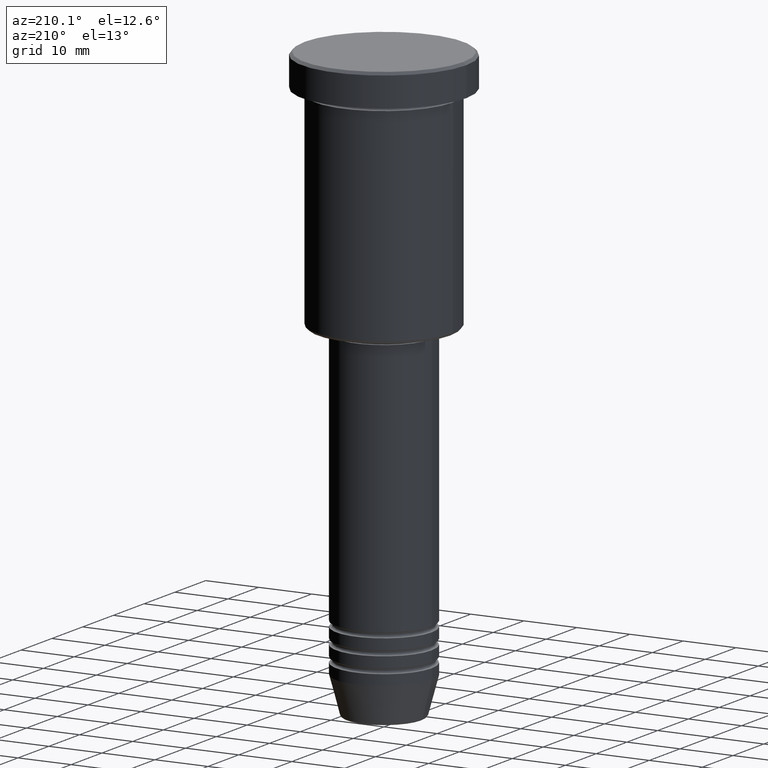
[diagram: clean part render]
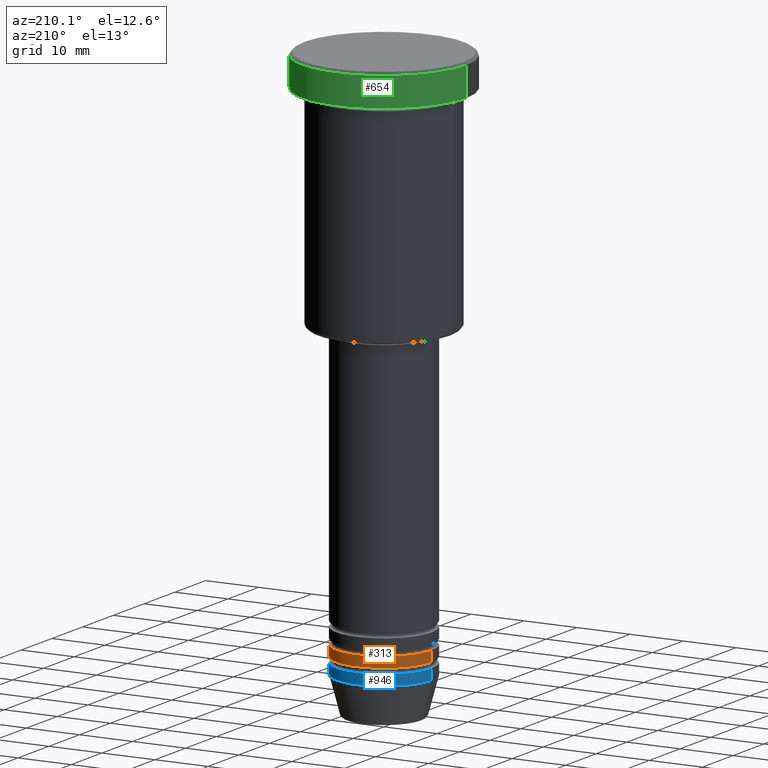
[diagram: same view with three faces highlighted in distinct colors, each labeled with its STEP entity id]
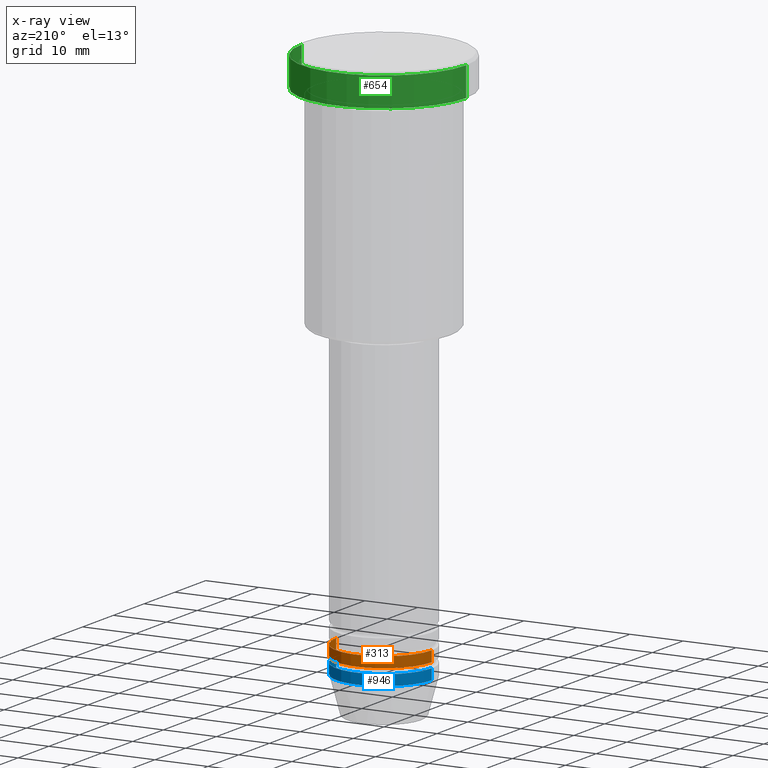
[diagram: x-ray of the same camera — body ghosted, the three highlighted faces saturated]
A machine part, auxiliary view with three faces highlighted in distinct colors.
The next image is the same camera in x-ray (body ghosted, the three faces saturated) — at least one of them is partly hidden behind the body in this view.
Their STEP definitions:

[orange] entity #313 — the highlighted cylindrical surface (partial cylindrical patch) has radius 9 mm, axis along (-0, -0, 1).
#30 = CIRCLE ( 'NONE', #711, 9.000000000000000000 ) ;
#130 = CARTESIAN_POINT ( 'NONE',  ( 9.000000000000000000, 0.000000000000000000, -100.9999999999999716 ) ) ;
#162 = FACE_OUTER_BOUND ( 'NONE', #693, .T. ) ;
#193 = DIRECTION ( 'NONE',  ( 1.000000000000000000, 0.000000000000000000, 0.000000000000000000 ) ) ;
#237 = DIRECTION ( 'NONE',  ( 1.000000000000000000, 0.000000000000000000, 0.000000000000000000 ) ) ;
#242 = VECTOR ( 'NONE', #951, 1000.000000000000000 ) ;
#313 = ADVANCED_FACE ( 'NONE', ( #162 ), #504, .T. ) ;
#327 = LINE ( 'NONE', #1063, #1002 ) ;
#363 = ORIENTED_EDGE ( 'NONE', *, *, #1036, .F. ) ;
#374 = VERTEX_POINT ( 'NONE', #462 ) ;
#421 = AXIS2_PLACEMENT_3D ( 'NONE', #691, #698, #237 ) ;
#434 = DIRECTION ( 'NONE',  ( -0.000000000000000000, -0.000000000000000000, 1.000000000000000000 ) ) ;
#449 = DIRECTION ( 'NONE',  ( -0.000000000000000000, -0.000000000000000000, 1.000000000000000000 ) ) ;
#462 = CARTESIAN_POINT ( 'NONE',  ( 9.000000000000000000, 0.000000000000000000, -98.99999999999998579 ) ) ;
#484 = ORIENTED_EDGE ( 'NONE', *, *, #639, .T. ) ;
#504 = CYLINDRICAL_SURFACE ( 'NONE', #421, 9.000000000000000000 ) ;
#589 = ORIENTED_EDGE ( 'NONE', *, *, #715, .F. ) ;
#600 = LINE ( 'NONE', #1048, #242 ) ;
#639 = EDGE_CURVE ( 'NONE', #674, #679, #600, .T. ) ;
#643 = DIRECTION ( 'NONE',  ( 1.000000000000000000, 0.000000000000000000, 0.000000000000000000 ) ) ;
#661 = VERTEX_POINT ( 'NONE', #130 ) ;
#674 = VERTEX_POINT ( 'NONE', #791 ) ;
#679 = VERTEX_POINT ( 'NONE', #776 ) ;
#691 = CARTESIAN_POINT ( 'NONE',  ( 0.000000000000000000, 0.000000000000000000, 0.000000000000000000 ) ) ;
#693 = EDGE_LOOP ( 'NONE', ( #972, #484, #363, #589 ) ) ;
#698 = DIRECTION ( 'NONE',  ( -0.000000000000000000, -0.000000000000000000, 1.000000000000000000 ) ) ;
#711 = AXIS2_PLACEMENT_3D ( 'NONE', #820, #449, #643 ) ;
#715 = EDGE_CURVE ( 'NONE', #661, #374, #327, .T. ) ;
#776 = CARTESIAN_POINT ( 'NONE',  ( -9.000000000000000000, 1.102182119232617714E-15, -98.99999999999998579 ) ) ;
#791 = CARTESIAN_POINT ( 'NONE',  ( -9.000000000000000000, 1.102182119232617714E-15, -100.9999999999999716 ) ) ;
#808 = EDGE_CURVE ( 'NONE', #661, #674, #30, .T. ) ;
#815 = CIRCLE ( 'NONE', #1076, 9.000000000000000000 ) ;
#820 = CARTESIAN_POINT ( 'NONE',  ( 0.000000000000000000, 0.000000000000000000, -100.9999999999999716 ) ) ;
#923 = DIRECTION ( 'NONE',  ( -0.000000000000000000, -0.000000000000000000, 1.000000000000000000 ) ) ;
#951 = DIRECTION ( 'NONE',  ( -0.000000000000000000, -0.000000000000000000, 1.000000000000000000 ) ) ;
#972 = ORIENTED_EDGE ( 'NONE', *, *, #808, .T. ) ;
#1002 = VECTOR ( 'NONE', #434, 1000.000000000000000 ) ;
#1036 = EDGE_CURVE ( 'NONE', #374, #679, #815, .T. ) ;
#1048 = CARTESIAN_POINT ( 'NONE',  ( -9.000000000000000000, 1.102182119232617714E-15, 0.000000000000000000 ) ) ;
#1063 = CARTESIAN_POINT ( 'NONE',  ( 9.000000000000000000, 0.000000000000000000, 0.000000000000000000 ) ) ;
#1076 = AXIS2_PLACEMENT_3D ( 'NONE', #1109, #923, #193 ) ;
#1109 = CARTESIAN_POINT ( 'NONE',  ( 0.000000000000000000, 0.000000000000000000, -98.99999999999998579 ) ) ;

[blue] entity #946 — the highlighted cylindrical surface (partial cylindrical patch) has radius 9 mm, axis along (-0, -0, 1).
#34 = EDGE_CURVE ( 'NONE', #994, #659, #509, .T. ) ;
#40 = CARTESIAN_POINT ( 'NONE',  ( -9.000000000000000000, 1.102182119232617714E-15, -104.0000000000000142 ) ) ;
#78 = CYLINDRICAL_SURFACE ( 'NONE', #221, 9.000000000000000000 ) ;
#86 = CARTESIAN_POINT ( 'NONE',  ( 9.000000000000000000, 0.000000000000000000, -102.0000000000000142 ) ) ;
#166 = VECTOR ( 'NONE', #212, 1000.000000000000000 ) ;
#170 = DIRECTION ( 'NONE',  ( -0.000000000000000000, -0.000000000000000000, 1.000000000000000000 ) ) ;
#176 = DIRECTION ( 'NONE',  ( 1.000000000000000000, 0.000000000000000000, 0.000000000000000000 ) ) ;
#212 = DIRECTION ( 'NONE',  ( -0.000000000000000000, -0.000000000000000000, 1.000000000000000000 ) ) ;
#221 = AXIS2_PLACEMENT_3D ( 'NONE', #637, #991, #176 ) ;
#273 = ORIENTED_EDGE ( 'NONE', *, *, #34, .T. ) ;
#321 = CIRCLE ( 'NONE', #983, 9.000000000000000000 ) ;
#325 = ORIENTED_EDGE ( 'NONE', *, *, #503, .F. ) ;
#380 = VERTEX_POINT ( 'NONE', #86 ) ;
#402 = VECTOR ( 'NONE', #1053, 1000.000000000000000 ) ;
#424 = EDGE_LOOP ( 'NONE', ( #273, #774, #793, #325 ) ) ;
#457 = CARTESIAN_POINT ( 'NONE',  ( 0.000000000000000000, 0.000000000000000000, -102.0000000000000142 ) ) ;
#459 = EDGE_CURVE ( 'NONE', #380, #695, #321, .T. ) ;
#503 = EDGE_CURVE ( 'NONE', #994, #380, #939, .T. ) ;
#509 = CIRCLE ( 'NONE', #781, 9.000000000000000000 ) ;
#539 = DIRECTION ( 'NONE',  ( 1.000000000000000000, 0.000000000000000000, 0.000000000000000000 ) ) ;
#541 = FACE_OUTER_BOUND ( 'NONE', #424, .T. ) ;
#618 = CARTESIAN_POINT ( 'NONE',  ( -9.000000000000000000, 1.102182119232617714E-15, 0.000000000000000000 ) ) ;
#637 = CARTESIAN_POINT ( 'NONE',  ( 0.000000000000000000, 0.000000000000000000, 0.000000000000000000 ) ) ;
#659 = VERTEX_POINT ( 'NONE', #40 ) ;
#675 = CARTESIAN_POINT ( 'NONE',  ( 9.000000000000000000, 0.000000000000000000, -104.0000000000000142 ) ) ;
#681 = CARTESIAN_POINT ( 'NONE',  ( 0.000000000000000000, 0.000000000000000000, -104.0000000000000142 ) ) ;
#695 = VERTEX_POINT ( 'NONE', #796 ) ;
#728 = EDGE_CURVE ( 'NONE', #659, #695, #889, .T. ) ;
#749 = DIRECTION ( 'NONE',  ( 1.000000000000000000, 0.000000000000000000, 0.000000000000000000 ) ) ;
#774 = ORIENTED_EDGE ( 'NONE', *, *, #728, .T. ) ;
#781 = AXIS2_PLACEMENT_3D ( 'NONE', #681, #1102, #749 ) ;
#793 = ORIENTED_EDGE ( 'NONE', *, *, #459, .F. ) ;
#796 = CARTESIAN_POINT ( 'NONE',  ( -9.000000000000000000, 1.102182119232617714E-15, -102.0000000000000142 ) ) ;
#889 = LINE ( 'NONE', #618, #402 ) ;
#939 = LINE ( 'NONE', #1110, #166 ) ;
#946 = ADVANCED_FACE ( 'NONE', ( #541 ), #78, .T. ) ;
#983 = AXIS2_PLACEMENT_3D ( 'NONE', #457, #170, #539 ) ;
#991 = DIRECTION ( 'NONE',  ( -0.000000000000000000, -0.000000000000000000, 1.000000000000000000 ) ) ;
#994 = VERTEX_POINT ( 'NONE', #675 ) ;
#1053 = DIRECTION ( 'NONE',  ( -0.000000000000000000, -0.000000000000000000, 1.000000000000000000 ) ) ;
#1102 = DIRECTION ( 'NONE',  ( -0.000000000000000000, -0.000000000000000000, 1.000000000000000000 ) ) ;
#1110 = CARTESIAN_POINT ( 'NONE',  ( 9.000000000000000000, 0.000000000000000000, 0.000000000000000000 ) ) ;

[green] entity #654 — the highlighted cylindrical surface (partial cylindrical patch) has radius 15.5 mm, axis along (-0, -0, 1).
#11 = VERTEX_POINT ( 'NONE', #463 ) ;
#47 = EDGE_CURVE ( 'NONE', #229, #505, #646, .T. ) ;
#129 = LINE ( 'NONE', #590, #1059 ) ;
#142 = CARTESIAN_POINT ( 'NONE',  ( 0.000000000000000000, 0.000000000000000000, 0.000000000000000000 ) ) ;
#229 = VERTEX_POINT ( 'NONE', #329 ) ;
#234 = DIRECTION ( 'NONE',  ( 1.000000000000000000, 0.000000000000000000, 0.000000000000000000 ) ) ;
#263 = DIRECTION ( 'NONE',  ( -0.000000000000000000, -0.000000000000000000, 1.000000000000000000 ) ) ;
#284 = DIRECTION ( 'NONE',  ( -0.000000000000000000, -0.000000000000000000, 1.000000000000000000 ) ) ;
#296 = CARTESIAN_POINT ( 'NONE',  ( -15.50000000000000000, 1.898202538678397557E-15, -5.999999999999995559 ) ) ;
#329 = CARTESIAN_POINT ( 'NONE',  ( 15.50000000000000000, 0.000000000000000000, -5.999999999999995559 ) ) ;
#388 = ORIENTED_EDGE ( 'NONE', *, *, #1124, .F. ) ;
#393 = EDGE_CURVE ( 'NONE', #505, #556, #1090, .T. ) ;
#407 = CARTESIAN_POINT ( 'NONE',  ( 0.000000000000000000, 0.000000000000000000, -0.5000000000000125455 ) ) ;
#463 = CARTESIAN_POINT ( 'NONE',  ( 15.50000000000000000, 0.000000000000000000, -0.5000000000000125455 ) ) ;
#488 = EDGE_CURVE ( 'NONE', #556, #11, #765, .T. ) ;
#494 = CARTESIAN_POINT ( 'NONE',  ( 0.000000000000000000, 0.000000000000000000, -5.999999999999995559 ) ) ;
#499 = DIRECTION ( 'NONE',  ( 1.000000000000000000, 0.000000000000000000, 0.000000000000000000 ) ) ;
#505 = VERTEX_POINT ( 'NONE', #296 ) ;
#556 = VERTEX_POINT ( 'NONE', #748 ) ;
#580 = ORIENTED_EDGE ( 'NONE', *, *, #47, .T. ) ;
#590 = CARTESIAN_POINT ( 'NONE',  ( 15.50000000000000000, 0.000000000000000000, 0.000000000000000000 ) ) ;
#617 = ORIENTED_EDGE ( 'NONE', *, *, #393, .T. ) ;
#646 = CIRCLE ( 'NONE', #1151, 15.50000000000000000 ) ;
#654 = ADVANCED_FACE ( 'NONE', ( #687 ), #1146, .T. ) ;
#687 = FACE_OUTER_BOUND ( 'NONE', #863, .T. ) ;
#748 = CARTESIAN_POINT ( 'NONE',  ( -15.50000000000000000, 1.898202538678397557E-15, -0.5000000000000125455 ) ) ;
#759 = DIRECTION ( 'NONE',  ( 1.000000000000000000, 0.000000000000000000, 0.000000000000000000 ) ) ;
#765 = CIRCLE ( 'NONE', #857, 15.50000000000000000 ) ;
#772 = DIRECTION ( 'NONE',  ( 0.000000000000000000, 0.000000000000000000, -1.000000000000000000 ) ) ;
#790 = DIRECTION ( 'NONE',  ( -0.000000000000000000, -0.000000000000000000, 1.000000000000000000 ) ) ;
#800 = DIRECTION ( 'NONE',  ( -0.000000000000000000, -0.000000000000000000, 1.000000000000000000 ) ) ;
#804 = VECTOR ( 'NONE', #263, 1000.000000000000000 ) ;
#839 = AXIS2_PLACEMENT_3D ( 'NONE', #142, #800, #234 ) ;
#857 = AXIS2_PLACEMENT_3D ( 'NONE', #407, #772, #759 ) ;
#863 = EDGE_LOOP ( 'NONE', ( #580, #617, #922, #388 ) ) ;
#922 = ORIENTED_EDGE ( 'NONE', *, *, #488, .T. ) ;
#992 = CARTESIAN_POINT ( 'NONE',  ( -15.50000000000000000, 1.898202538678397557E-15, 0.000000000000000000 ) ) ;
#1059 = VECTOR ( 'NONE', #790, 1000.000000000000000 ) ;
#1090 = LINE ( 'NONE', #992, #804 ) ;
#1124 = EDGE_CURVE ( 'NONE', #229, #11, #129, .T. ) ;
#1146 = CYLINDRICAL_SURFACE ( 'NONE', #839, 15.50000000000000000 ) ;
#1151 = AXIS2_PLACEMENT_3D ( 'NONE', #494, #284, #499 ) ;